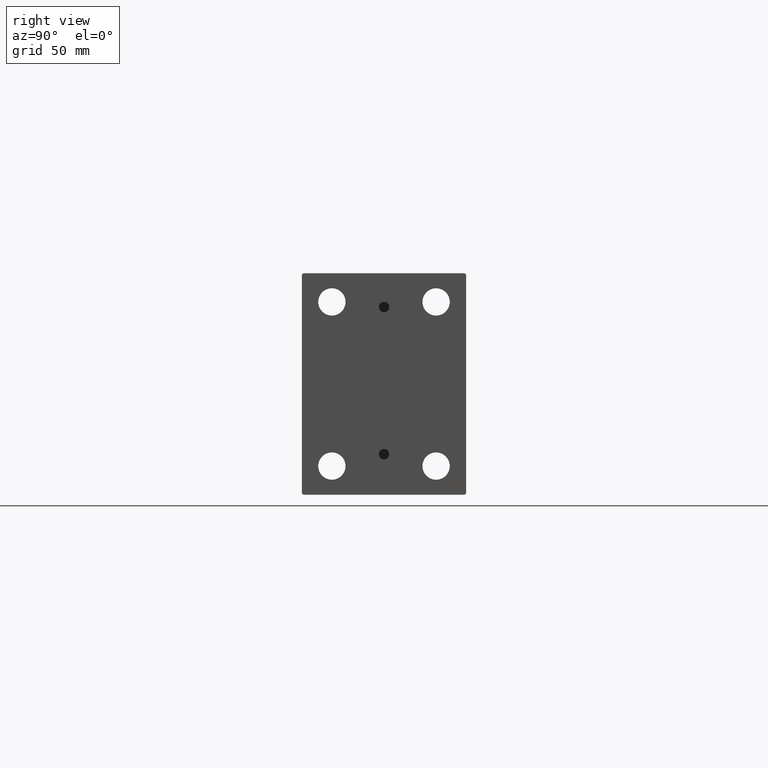
[diagram: clean part render]
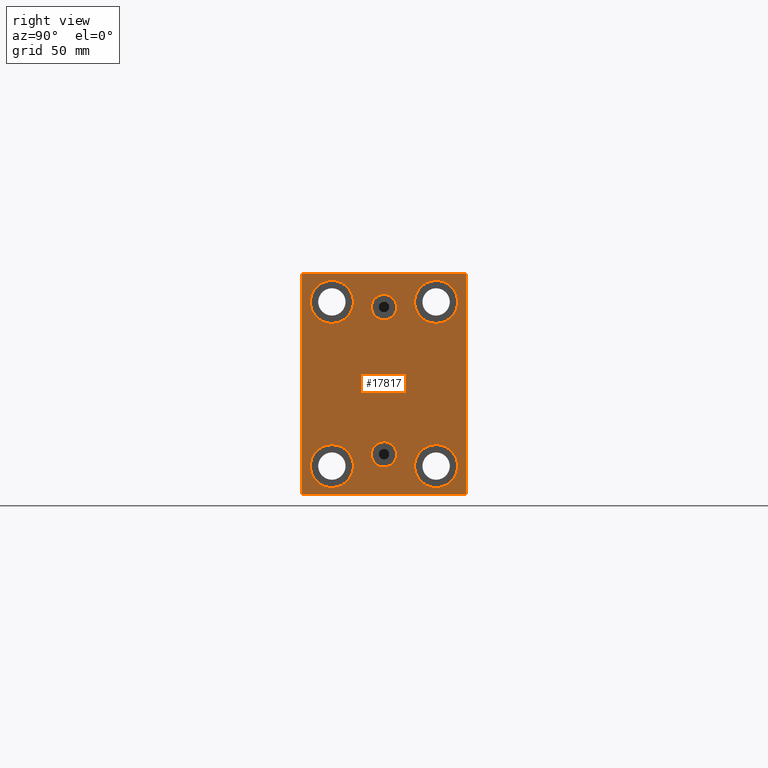
[diagram: same view with one face highlighted and labeled with its STEP entity id]
A machine part, right view. The second image highlights one B-rep face of the part: STEP entity #17817.
In plain terms, the highlighted planar face has unit normal (1, 0, 0).
Its self-contained STEP definition (entity closure, byte-faithful):
#14 = ORIENTED_EDGE ( 'NONE', *, *, #8809, .T. ) ;
#301 = EDGE_CURVE ( 'NONE', #3338, #10096, #44866, .T. ) ;
#585 = CIRCLE ( 'NONE', #32828, 8.250000000000000000 ) ;
#710 = LINE ( 'NONE', #933, #20261 ) ;
#855 = VERTEX_POINT ( 'NONE', #12463 ) ;
#933 = CARTESIAN_POINT ( 'NONE',  ( 213.0000000000000000, -36.75000000000000711, -36.75000000000000711 ) ) ;
#1216 = ORIENTED_EDGE ( 'NONE', *, *, #34816, .F. ) ;
#1572 = DIRECTION ( 'NONE',  ( 0.000000000000000000, 0.000000000000000000, -1.000000000000000000 ) ) ;
#1667 = CIRCLE ( 'NONE', #34633, 8.249999999999992895 ) ;
#1764 = CARTESIAN_POINT ( 'NONE',  ( 213.0000000000000000, -3.571693674697836683E-15, 29.50000000000001066 ) ) ;
#1809 = FACE_BOUND ( 'NONE', #22208, .T. ) ;
#2106 = CARTESIAN_POINT ( 'NONE',  ( 213.0000000000000000, 3.306546357697852550E-15, -31.85999999999998522 ) ) ;
#2811 = ORIENTED_EDGE ( 'NONE', *, *, #15797, .T. ) ;
#3338 = VERTEX_POINT ( 'NONE', #18427 ) ;
#3541 = ORIENTED_EDGE ( 'NONE', *, *, #44417, .T. ) ;
#3575 = CARTESIAN_POINT ( 'NONE',  ( 213.0000000000000000, -3.571693674697836683E-15, 29.50000000000001066 ) ) ;
#3734 = CARTESIAN_POINT ( 'NONE',  ( 213.0000000000000000, 3.306546357697852550E-15, -26.99999999999998934 ) ) ;
#3781 = CARTESIAN_POINT ( 'NONE',  ( 213.0000000000000000, -20.00000000000000355, -31.49999999999999289 ) ) ;
#3983 = CARTESIAN_POINT ( 'NONE',  ( 213.0000000000000000, 31.00000000000000000, 42.50000000000000711 ) ) ;
#4044 = VERTEX_POINT ( 'NONE', #12095 ) ;
#4578 = ORIENTED_EDGE ( 'NONE', *, *, #15769, .T. ) ;
#4665 = CARTESIAN_POINT ( 'NONE',  ( 213.0000000000000000, 20.00000000000000355, 31.50000000000000000 ) ) ;
#5026 = CARTESIAN_POINT ( 'NONE',  ( 213.0000000000000000, 0.000000000000000000, 0.000000000000000000 ) ) ;
#5084 = DIRECTION ( 'NONE',  ( 0.000000000000000000, 0.000000000000000000, 1.000000000000000000 ) ) ;
#5258 = CARTESIAN_POINT ( 'NONE',  ( 213.0000000000000000, 19.99999999999999645, -31.49999999999999289 ) ) ;
#5631 = VERTEX_POINT ( 'NONE', #33018 ) ;
#5675 = CARTESIAN_POINT ( 'NONE',  ( 213.0000000000000000, 31.50000000000000000, 42.50000000000000711 ) ) ;
#5697 = AXIS2_PLACEMENT_3D ( 'NONE', #3781, #36497, #5084 ) ;
#6096 = CARTESIAN_POINT ( 'NONE',  ( 213.0000000000000000, 19.99999999999999645, -23.24999999999999289 ) ) ;
#6420 = CARTESIAN_POINT ( 'NONE',  ( 213.0000000000000000, 31.00000000000001421, -42.50000000000000711 ) ) ;
#6469 = DIRECTION ( 'NONE',  ( 0.000000000000000000, 1.000000000000000000, 0.000000000000000000 ) ) ;
#7295 = EDGE_LOOP ( 'NONE', ( #39689, #17608 ) ) ;
#7424 = EDGE_LOOP ( 'NONE', ( #10389, #10863, #14, #44244, #2811, #23455, #11096, #34441 ) ) ;
#7484 = VERTEX_POINT ( 'NONE', #3983 ) ;
#7546 = DIRECTION ( 'NONE',  ( 0.000000000000000000, 0.000000000000000000, 1.000000000000000000 ) ) ;
#7637 = VERTEX_POINT ( 'NONE', #44355 ) ;
#7979 = DIRECTION ( 'NONE',  ( 1.000000000000000000, 0.000000000000000000, 0.000000000000000000 ) ) ;
#8327 = ORIENTED_EDGE ( 'NONE', *, *, #9510, .T. ) ;
#8336 = DIRECTION ( 'NONE',  ( 0.000000000000000000, 0.000000000000000000, 1.000000000000000000 ) ) ;
#8809 = EDGE_CURVE ( 'NONE', #5631, #33946, #9655, .T. ) ;
#8931 = FACE_BOUND ( 'NONE', #7295, .T. ) ;
#9115 = DIRECTION ( 'NONE',  ( -1.000000000000000000, -0.000000000000000000, -0.000000000000000000 ) ) ;
#9156 = CIRCLE ( 'NONE', #31123, 4.859999999999999432 ) ;
#9244 = LINE ( 'NONE', #44112, #15312 ) ;
#9510 = EDGE_CURVE ( 'NONE', #28385, #7637, #25465, .T. ) ;
#9531 = CIRCLE ( 'NONE', #31485, 8.249999999999992895 ) ;
#9655 = LINE ( 'NONE', #27300, #16535 ) ;
#10096 = VERTEX_POINT ( 'NONE', #10740 ) ;
#10124 = AXIS2_PLACEMENT_3D ( 'NONE', #3734, #14503, #41594 ) ;
#10142 = LINE ( 'NONE', #31242, #27786 ) ;
#10389 = ORIENTED_EDGE ( 'NONE', *, *, #34940, .T. ) ;
#10601 = VERTEX_POINT ( 'NONE', #10633 ) ;
#10633 = CARTESIAN_POINT ( 'NONE',  ( 213.0000000000000000, -31.00000000000000000, -42.50000000000000711 ) ) ;
#10740 = CARTESIAN_POINT ( 'NONE',  ( 213.0000000000000000, -3.571693674697836683E-15, 24.64000000000001123 ) ) ;
#10863 = ORIENTED_EDGE ( 'NONE', *, *, #11276, .T. ) ;
#10931 = AXIS2_PLACEMENT_3D ( 'NONE', #18401, #25513, #11310 ) ;
#11096 = ORIENTED_EDGE ( 'NONE', *, *, #18538, .T. ) ;
#11276 = EDGE_CURVE ( 'NONE', #22490, #5631, #44048, .T. ) ;
#11310 = DIRECTION ( 'NONE',  ( 0.000000000000000000, 0.000000000000000000, 1.000000000000000000 ) ) ;
#11472 = VECTOR ( 'NONE', #30154, 1000.000000000000114 ) ;
#11620 = DIRECTION ( 'NONE',  ( 0.000000000000000000, 0.000000000000000000, 1.000000000000000000 ) ) ;
#11738 = EDGE_CURVE ( 'NONE', #18862, #34713, #41683, .T. ) ;
#11895 = EDGE_CURVE ( 'NONE', #20969, #7484, #9244, .T. ) ;
#11926 = DIRECTION ( 'NONE',  ( 0.000000000000000000, 0.000000000000000000, 1.000000000000000000 ) ) ;
#12095 = CARTESIAN_POINT ( 'NONE',  ( 213.0000000000000000, 19.99999999999999645, -39.74999999999999289 ) ) ;
#12426 = VECTOR ( 'NONE', #27663, 1000.000000000000114 ) ;
#12463 = CARTESIAN_POINT ( 'NONE',  ( 213.0000000000000000, -19.99999999999999645, 23.25000000000000355 ) ) ;
#12735 = DIRECTION ( 'NONE',  ( 0.000000000000000000, -1.632680918566406300E-16, 1.000000000000000000 ) ) ;
#12808 = LINE ( 'NONE', #5675, #24501 ) ;
#13580 = DIRECTION ( 'NONE',  ( 0.000000000000000000, 0.000000000000000000, 1.000000000000000000 ) ) ;
#13872 = AXIS2_PLACEMENT_3D ( 'NONE', #20001, #45245, #44350 ) ;
#14503 = DIRECTION ( 'NONE',  ( 1.000000000000000000, 0.000000000000000000, -0.000000000000000000 ) ) ;
#14800 = ORIENTED_EDGE ( 'NONE', *, *, #32202, .T. ) ;
#15312 = VECTOR ( 'NONE', #33306, 1000.000000000000114 ) ;
#15769 = EDGE_CURVE ( 'NONE', #35425, #39341, #40228, .T. ) ;
#15797 = EDGE_CURVE ( 'NONE', #10601, #37884, #10142, .T. ) ;
#16535 = VECTOR ( 'NONE', #40859, 1000.000000000000000 ) ;
#16954 = EDGE_CURVE ( 'NONE', #855, #41935, #9531, .T. ) ;
#17608 = ORIENTED_EDGE ( 'NONE', *, *, #25326, .T. ) ;
#17755 = EDGE_LOOP ( 'NONE', ( #27169, #23253 ) ) ;
#17817 = ADVANCED_FACE ( 'NONE', ( #22234, #29339, #1809, #8931, #26362, #33463, #43344 ), #36438, .T. ) ;
#18113 = EDGE_CURVE ( 'NONE', #7637, #28385, #43207, .T. ) ;
#18323 = DIRECTION ( 'NONE',  ( -1.000000000000000000, -0.000000000000000000, -0.000000000000000000 ) ) ;
#18401 = CARTESIAN_POINT ( 'NONE',  ( 213.0000000000000000, 3.306546357697852550E-15, -26.99999999999998934 ) ) ;
#18427 = CARTESIAN_POINT ( 'NONE',  ( 213.0000000000000000, -2.976515330312223011E-15, 34.36000000000000654 ) ) ;
#18538 = EDGE_CURVE ( 'NONE', #19033, #20969, #31047, .T. ) ;
#18862 = VERTEX_POINT ( 'NONE', #2106 ) ;
#19033 = VERTEX_POINT ( 'NONE', #33190 ) ;
#19242 = DIRECTION ( 'NONE',  ( -1.000000000000000000, -0.000000000000000000, -0.000000000000000000 ) ) ;
#20001 = CARTESIAN_POINT ( 'NONE',  ( 213.0000000000000000, 20.00000000000000355, 31.50000000000000000 ) ) ;
#20261 = VECTOR ( 'NONE', #32831, 1000.000000000000114 ) ;
#20263 = LINE ( 'NONE', #23715, #11472 ) ;
#20969 = VERTEX_POINT ( 'NONE', #21490 ) ;
#21490 = CARTESIAN_POINT ( 'NONE',  ( 213.0000000000000000, 31.50000000000000000, 42.00000000000000711 ) ) ;
#22208 = EDGE_LOOP ( 'NONE', ( #3541, #14800 ) ) ;
#22234 = FACE_BOUND ( 'NONE', #25878, .T. ) ;
#22439 = EDGE_LOOP ( 'NONE', ( #31586, #8327 ) ) ;
#22490 = VERTEX_POINT ( 'NONE', #38630 ) ;
#22714 = AXIS2_PLACEMENT_3D ( 'NONE', #5026, #40590, #1572 ) ;
#22878 = DIRECTION ( 'NONE',  ( 0.000000000000000000, -1.000000000000000000, -2.202823461557850341E-16 ) ) ;
#23253 = ORIENTED_EDGE ( 'NONE', *, *, #42579, .F. ) ;
#23446 = CARTESIAN_POINT ( 'NONE',  ( 213.0000000000000000, 3.901724702083465828E-15, -22.13999999999999346 ) ) ;
#23455 = ORIENTED_EDGE ( 'NONE', *, *, #39989, .T. ) ;
#23456 = CARTESIAN_POINT ( 'NONE',  ( 213.0000000000000000, 20.00000000000000355, 23.25000000000000355 ) ) ;
#23676 = CARTESIAN_POINT ( 'NONE',  ( 213.0000000000000000, 19.99999999999999645, -31.49999999999999289 ) ) ;
#23715 = CARTESIAN_POINT ( 'NONE',  ( 213.0000000000000000, 36.75000000000001421, -36.75000000000001421 ) ) ;
#23824 = ORIENTED_EDGE ( 'NONE', *, *, #301, .F. ) ;
#24501 = VECTOR ( 'NONE', #22878, 1000.000000000000000 ) ;
#25326 = EDGE_CURVE ( 'NONE', #41935, #855, #26568, .T. ) ;
#25368 = CARTESIAN_POINT ( 'NONE',  ( 213.0000000000000000, -19.99999999999999645, 31.50000000000000000 ) ) ;
#25465 = CIRCLE ( 'NONE', #5697, 8.250000000000000000 ) ;
#25513 = DIRECTION ( 'NONE',  ( 1.000000000000000000, 0.000000000000000000, -0.000000000000000000 ) ) ;
#25636 = DIRECTION ( 'NONE',  ( 0.000000000000000000, 0.000000000000000000, -1.000000000000000000 ) ) ;
#25759 = EDGE_CURVE ( 'NONE', #39341, #35425, #1667, .T. ) ;
#25878 = EDGE_LOOP ( 'NONE', ( #1216, #23824 ) ) ;
#26362 = FACE_BOUND ( 'NONE', #39279, .T. ) ;
#26365 = CARTESIAN_POINT ( 'NONE',  ( 213.0000000000000000, -31.50000000000000000, -42.00000000000000711 ) ) ;
#26568 = CIRCLE ( 'NONE', #36036, 8.249999999999992895 ) ;
#27169 = ORIENTED_EDGE ( 'NONE', *, *, #11738, .F. ) ;
#27300 = CARTESIAN_POINT ( 'NONE',  ( 213.0000000000000000, -31.50000000000000000, 42.49999999999999289 ) ) ;
#27663 = DIRECTION ( 'NONE',  ( 0.000000000000000000, -0.7071067811865474617, -0.7071067811865474617 ) ) ;
#27786 = VECTOR ( 'NONE', #6469, 1000.000000000000000 ) ;
#28385 = VERTEX_POINT ( 'NONE', #30490 ) ;
#28876 = CARTESIAN_POINT ( 'NONE',  ( 213.0000000000000000, -19.99999999999999645, 31.50000000000000000 ) ) ;
#29316 = AXIS2_PLACEMENT_3D ( 'NONE', #43752, #9115, #43518 ) ;
#29339 = FACE_BOUND ( 'NONE', #17755, .T. ) ;
#29898 = CIRCLE ( 'NONE', #10124, 4.859999999999995879 ) ;
#30154 = DIRECTION ( 'NONE',  ( -0.000000000000000000, 0.7071067811865474617, 0.7071067811865474617 ) ) ;
#30238 = AXIS2_PLACEMENT_3D ( 'NONE', #3575, #31563, #38440 ) ;
#30490 = CARTESIAN_POINT ( 'NONE',  ( 213.0000000000000000, -20.00000000000000355, -23.24999999999999289 ) ) ;
#31047 = LINE ( 'NONE', #37024, #41057 ) ;
#31123 = AXIS2_PLACEMENT_3D ( 'NONE', #1764, #7979, #25636 ) ;
#31242 = CARTESIAN_POINT ( 'NONE',  ( 213.0000000000000000, -31.50000000000000000, -42.50000000000000711 ) ) ;
#31485 = AXIS2_PLACEMENT_3D ( 'NONE', #28876, #18323, #7546 ) ;
#31563 = DIRECTION ( 'NONE',  ( 1.000000000000000000, 0.000000000000000000, 0.000000000000000000 ) ) ;
#31586 = ORIENTED_EDGE ( 'NONE', *, *, #18113, .T. ) ;
#32202 = EDGE_CURVE ( 'NONE', #38221, #4044, #37618, .T. ) ;
#32828 = AXIS2_PLACEMENT_3D ( 'NONE', #23676, #45013, #13580 ) ;
#32831 = DIRECTION ( 'NONE',  ( -0.000000000000000000, 0.7071067811865474617, -0.7071067811865474617 ) ) ;
#33018 = CARTESIAN_POINT ( 'NONE',  ( 213.0000000000000000, -31.50000000000000000, 41.99999999999999289 ) ) ;
#33190 = CARTESIAN_POINT ( 'NONE',  ( 213.0000000000000000, 31.50000000000001421, -42.00000000000000711 ) ) ;
#33306 = DIRECTION ( 'NONE',  ( -0.000000000000000000, -0.7071067811865474617, 0.7071067811865474617 ) ) ;
#33463 = FACE_BOUND ( 'NONE', #22439, .T. ) ;
#33946 = VERTEX_POINT ( 'NONE', #26365 ) ;
#34441 = ORIENTED_EDGE ( 'NONE', *, *, #11895, .T. ) ;
#34633 = AXIS2_PLACEMENT_3D ( 'NONE', #4665, #40219, #8336 ) ;
#34713 = VERTEX_POINT ( 'NONE', #23446 ) ;
#34816 = EDGE_CURVE ( 'NONE', #10096, #3338, #9156, .T. ) ;
#34940 = EDGE_CURVE ( 'NONE', #7484, #22490, #12808, .T. ) ;
#35425 = VERTEX_POINT ( 'NONE', #23456 ) ;
#36036 = AXIS2_PLACEMENT_3D ( 'NONE', #25368, #39356, #11620 ) ;
#36438 = PLANE ( 'NONE',  #22714 ) ;
#36497 = DIRECTION ( 'NONE',  ( -1.000000000000000000, -0.000000000000000000, -0.000000000000000000 ) ) ;
#37024 = CARTESIAN_POINT ( 'NONE',  ( 213.0000000000000000, 31.50000000000001421, -42.50000000000000711 ) ) ;
#37241 = CARTESIAN_POINT ( 'NONE',  ( 213.0000000000000000, 20.00000000000000355, 39.74999999999999289 ) ) ;
#37618 = CIRCLE ( 'NONE', #42029, 8.250000000000000000 ) ;
#37884 = VERTEX_POINT ( 'NONE', #6420 ) ;
#37984 = CARTESIAN_POINT ( 'NONE',  ( 213.0000000000000000, -36.75000000000000000, 36.75000000000000000 ) ) ;
#38221 = VERTEX_POINT ( 'NONE', #6096 ) ;
#38440 = DIRECTION ( 'NONE',  ( 0.000000000000000000, 0.000000000000000000, -1.000000000000000000 ) ) ;
#38543 = CARTESIAN_POINT ( 'NONE',  ( 213.0000000000000000, -19.99999999999999645, 39.74999999999999289 ) ) ;
#38630 = CARTESIAN_POINT ( 'NONE',  ( 213.0000000000000000, -31.00000000000000000, 42.49999999999999289 ) ) ;
#39279 = EDGE_LOOP ( 'NONE', ( #4578, #40218 ) ) ;
#39341 = VERTEX_POINT ( 'NONE', #37241 ) ;
#39356 = DIRECTION ( 'NONE',  ( -1.000000000000000000, -0.000000000000000000, -0.000000000000000000 ) ) ;
#39689 = ORIENTED_EDGE ( 'NONE', *, *, #16954, .T. ) ;
#39989 = EDGE_CURVE ( 'NONE', #37884, #19033, #20263, .T. ) ;
#40218 = ORIENTED_EDGE ( 'NONE', *, *, #25759, .T. ) ;
#40219 = DIRECTION ( 'NONE',  ( -1.000000000000000000, -0.000000000000000000, -0.000000000000000000 ) ) ;
#40228 = CIRCLE ( 'NONE', #13872, 8.249999999999992895 ) ;
#40590 = DIRECTION ( 'NONE',  ( 1.000000000000000000, 0.000000000000000000, 0.000000000000000000 ) ) ;
#40859 = DIRECTION ( 'NONE',  ( 0.000000000000000000, 0.000000000000000000, -1.000000000000000000 ) ) ;
#41057 = VECTOR ( 'NONE', #12735, 1000.000000000000000 ) ;
#41594 = DIRECTION ( 'NONE',  ( 0.000000000000000000, 0.000000000000000000, 1.000000000000000000 ) ) ;
#41683 = CIRCLE ( 'NONE', #10931, 4.859999999999995879 ) ;
#41859 = EDGE_CURVE ( 'NONE', #33946, #10601, #710, .T. ) ;
#41935 = VERTEX_POINT ( 'NONE', #38543 ) ;
#42029 = AXIS2_PLACEMENT_3D ( 'NONE', #5258, #19242, #11926 ) ;
#42579 = EDGE_CURVE ( 'NONE', #34713, #18862, #29898, .T. ) ;
#43207 = CIRCLE ( 'NONE', #29316, 8.250000000000000000 ) ;
#43344 = FACE_OUTER_BOUND ( 'NONE', #7424, .T. ) ;
#43518 = DIRECTION ( 'NONE',  ( 0.000000000000000000, 0.000000000000000000, 1.000000000000000000 ) ) ;
#43752 = CARTESIAN_POINT ( 'NONE',  ( 213.0000000000000000, -20.00000000000000355, -31.49999999999999289 ) ) ;
#44048 = LINE ( 'NONE', #37984, #12426 ) ;
#44112 = CARTESIAN_POINT ( 'NONE',  ( 213.0000000000000000, 36.75000000000000711, 36.75000000000000711 ) ) ;
#44244 = ORIENTED_EDGE ( 'NONE', *, *, #41859, .T. ) ;
#44350 = DIRECTION ( 'NONE',  ( 0.000000000000000000, 0.000000000000000000, 1.000000000000000000 ) ) ;
#44355 = CARTESIAN_POINT ( 'NONE',  ( 213.0000000000000000, -20.00000000000000355, -39.74999999999999289 ) ) ;
#44417 = EDGE_CURVE ( 'NONE', #4044, #38221, #585, .T. ) ;
#44866 = CIRCLE ( 'NONE', #30238, 4.859999999999999432 ) ;
#45013 = DIRECTION ( 'NONE',  ( -1.000000000000000000, -0.000000000000000000, -0.000000000000000000 ) ) ;
#45245 = DIRECTION ( 'NONE',  ( -1.000000000000000000, -0.000000000000000000, -0.000000000000000000 ) ) ;